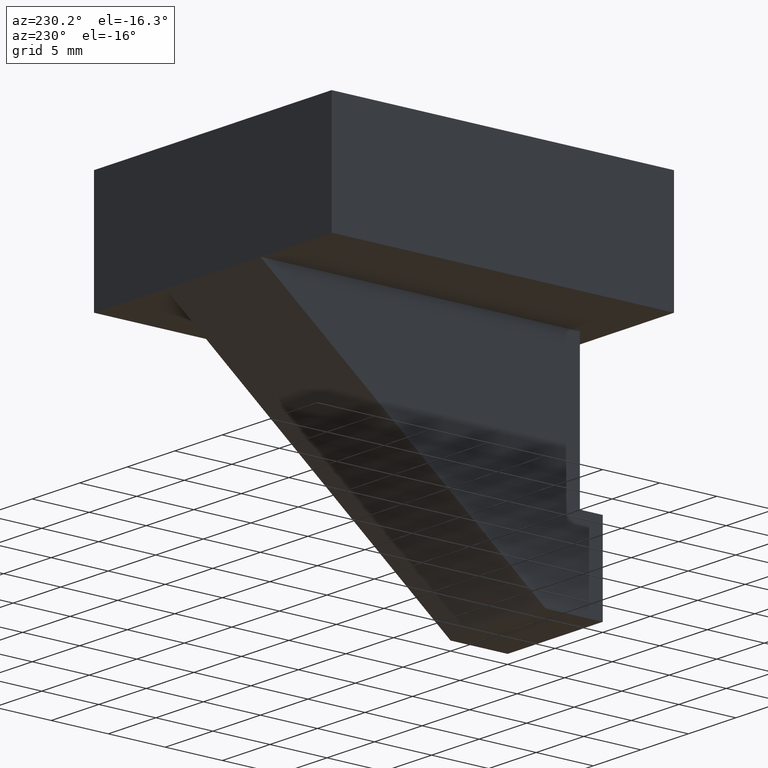
[diagram: clean part render]
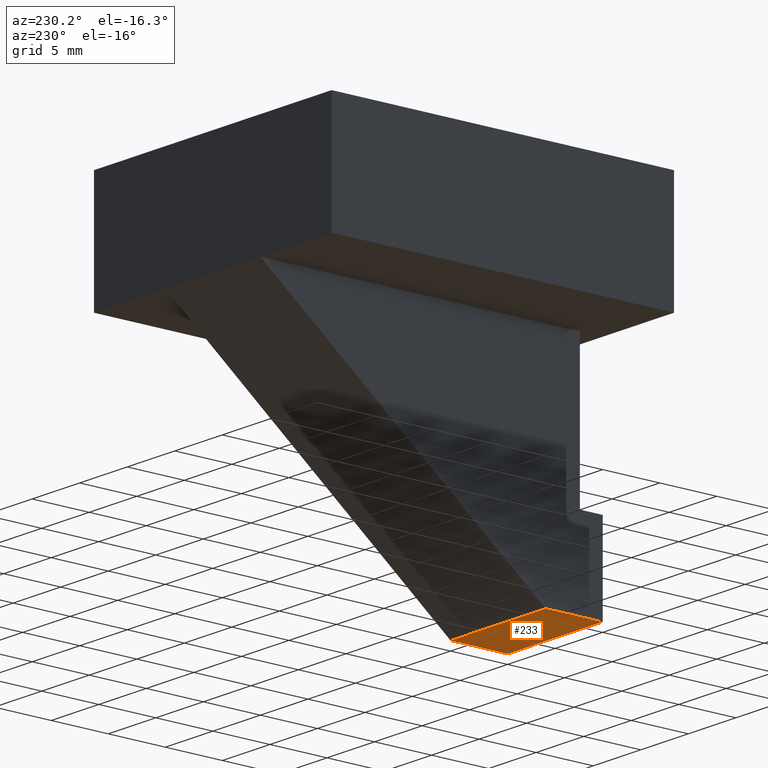
[diagram: same view with one face highlighted and labeled with its STEP entity id]
A machine part, auxiliary view. The second image highlights one B-rep face of the part: STEP entity #233.
In plain terms, the highlighted planar face has unit normal (0, 0, -1).
Its self-contained STEP definition (entity closure, byte-faithful):
#19=FACE_OUTER_BOUND('',#32,.T.);
#32=EDGE_LOOP('',(#172,#173,#174,#175));
#46=LINE('',#350,#77);
#54=LINE('',#366,#85);
#55=LINE('',#369,#86);
#56=LINE('',#370,#87);
#77=VECTOR('',#287,10.);
#85=VECTOR('',#301,10.);
#86=VECTOR('',#304,10.);
#87=VECTOR('',#305,10.);
#103=VERTEX_POINT('',#339);
#108=VERTEX_POINT('',#348);
#113=VERTEX_POINT('',#364);
#114=VERTEX_POINT('',#368);
#128=EDGE_CURVE('',#108,#103,#46,.T.);
#136=EDGE_CURVE('',#108,#113,#54,.T.);
#137=EDGE_CURVE('',#114,#113,#55,.T.);
#138=EDGE_CURVE('',#103,#114,#56,.T.);
#172=ORIENTED_EDGE('',*,*,#136,.T.);
#173=ORIENTED_EDGE('',*,*,#137,.F.);
#174=ORIENTED_EDGE('',*,*,#138,.F.);
#175=ORIENTED_EDGE('',*,*,#128,.F.);
#220=PLANE('',#269);
#233=ADVANCED_FACE('',(#19),#220,.T.);
#269=AXIS2_PLACEMENT_3D('',#367,#302,#303);
#287=DIRECTION('',(0.,-1.,0.));
#301=DIRECTION('',(1.,0.,0.));
#302=DIRECTION('center_axis',(0.,0.,-1.));
#303=DIRECTION('ref_axis',(0.,1.,0.));
#304=DIRECTION('',(0.,1.,0.));
#305=DIRECTION('',(1.,0.,0.));
#339=CARTESIAN_POINT('',(-5.,0.,-20.));
#348=CARTESIAN_POINT('',(-5.,5.,-20.));
#350=CARTESIAN_POINT('',(-5.,0.,-20.));
#364=CARTESIAN_POINT('',(5.,5.,-20.));
#366=CARTESIAN_POINT('',(0.,5.,-20.));
#367=CARTESIAN_POINT('Origin',(0.,0.,-20.));
#368=CARTESIAN_POINT('',(5.,0.,-20.));
#369=CARTESIAN_POINT('',(5.,0.,-20.));
#370=CARTESIAN_POINT('',(0.,0.,-20.));